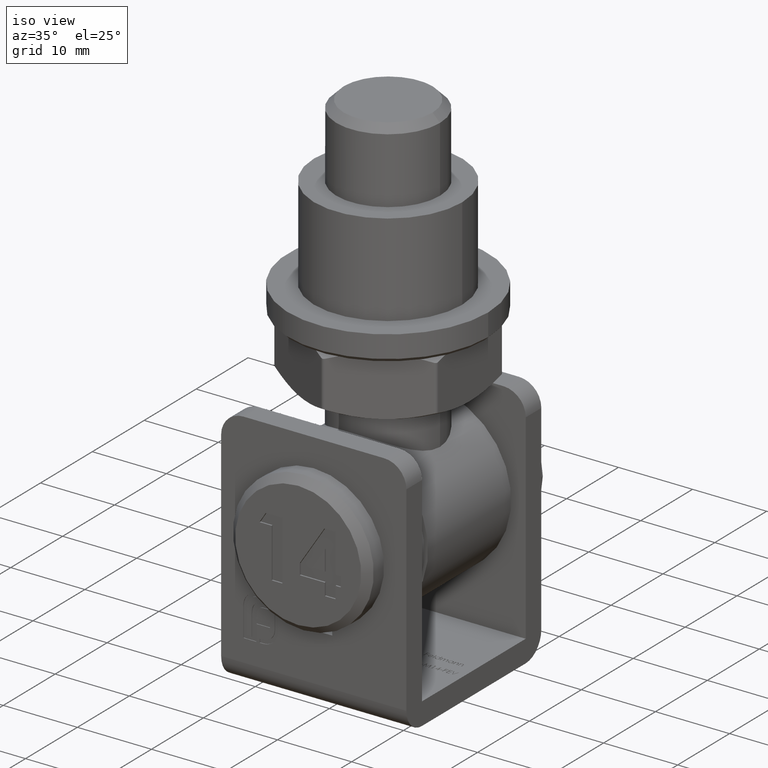
[diagram: clean part render]
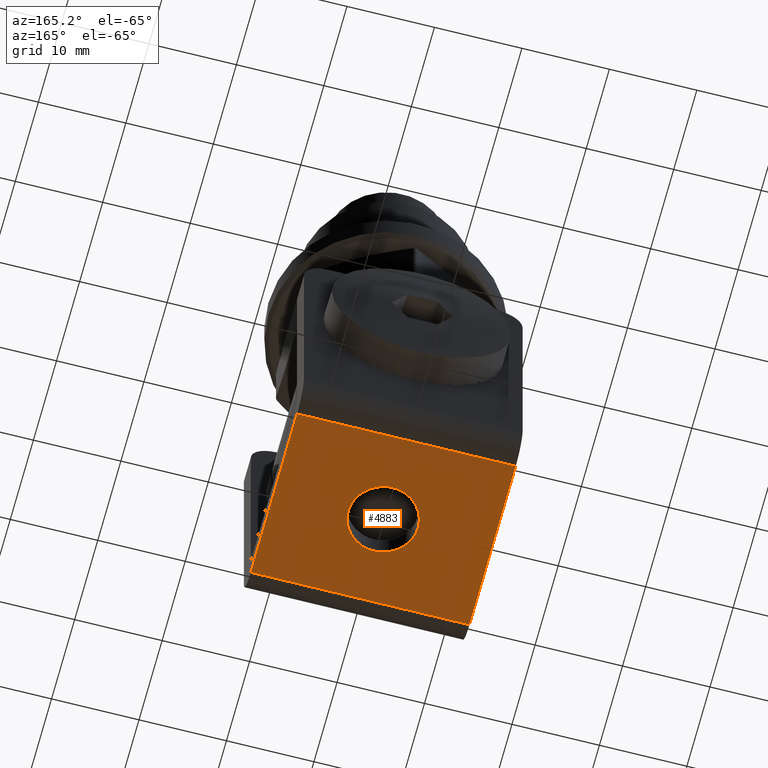
[diagram: tour spotlight — one face highlighted and labeled with its STEP entity id]
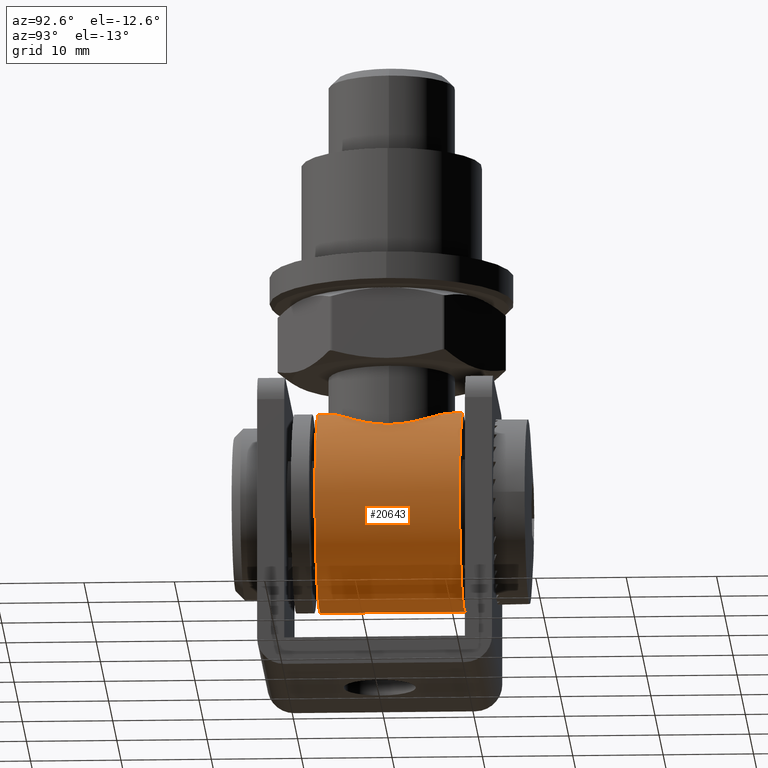
[diagram: tour spotlight — one face highlighted and labeled with its STEP entity id]
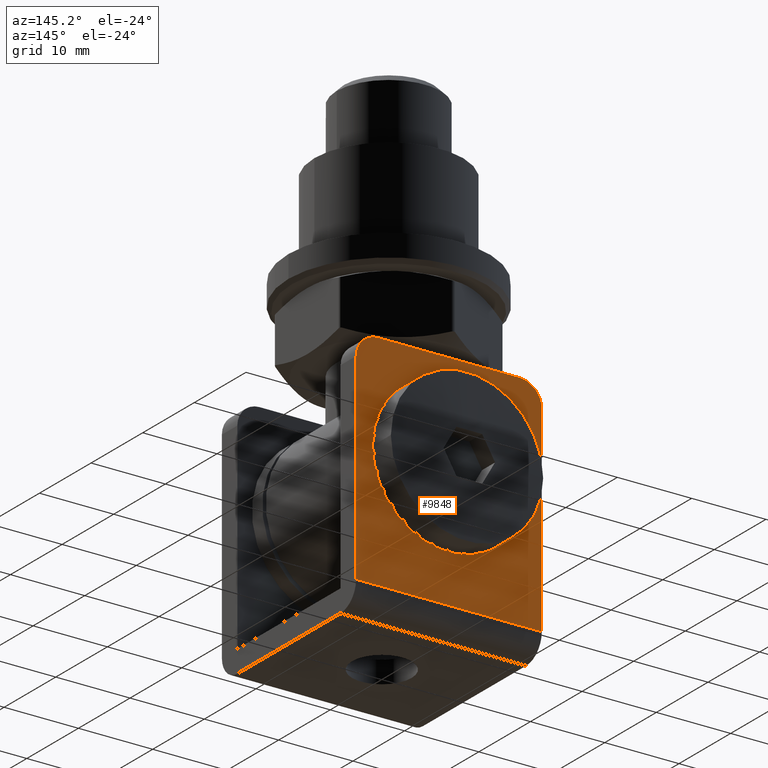
[diagram: tour spotlight — one face highlighted and labeled with its STEP entity id]
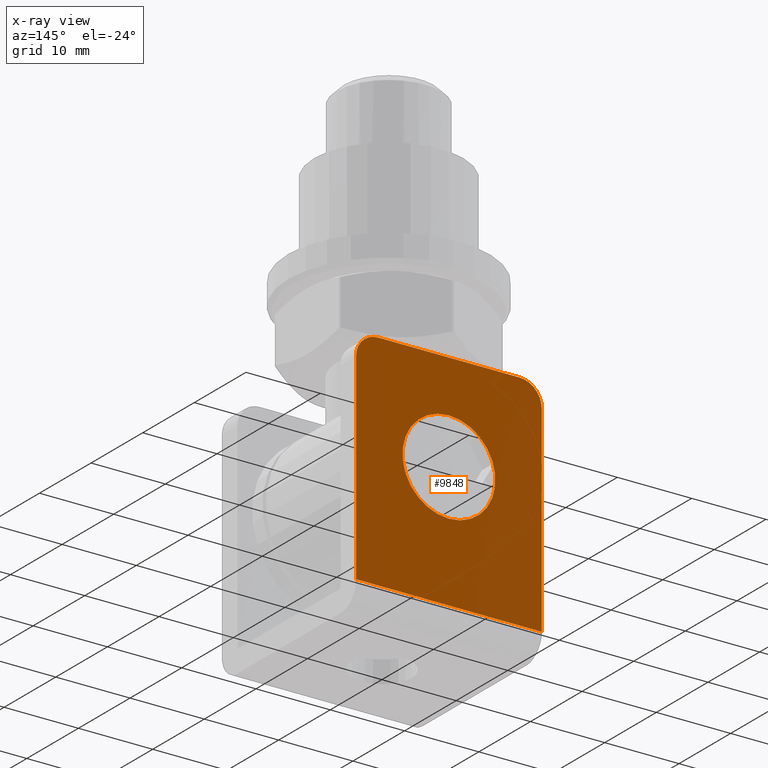
[diagram: x-ray of the same camera — body ghosted, this tour face saturated]
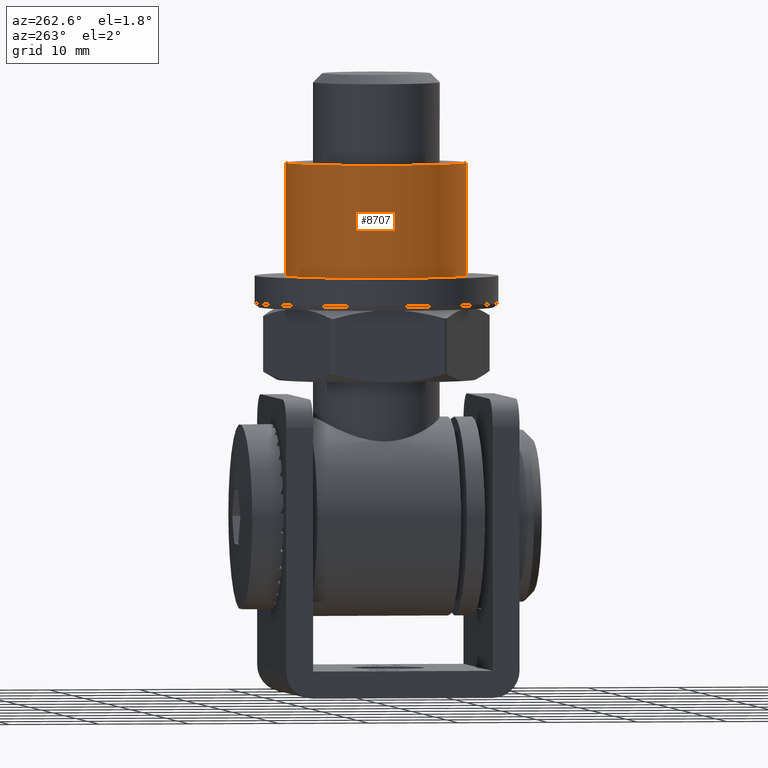
[diagram: tour spotlight — one face highlighted and labeled with its STEP entity id]
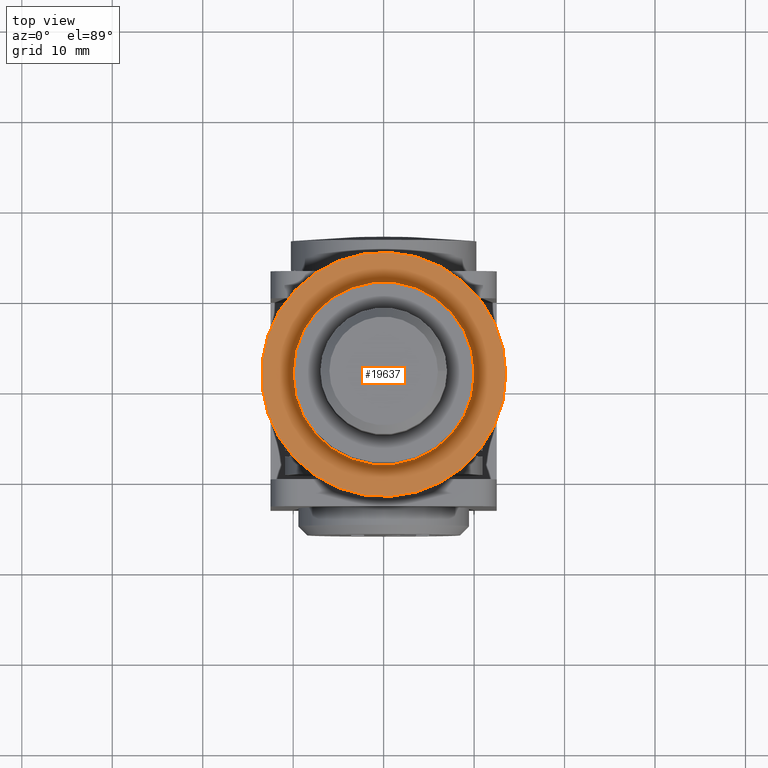
[diagram: tour spotlight — one face highlighted and labeled with its STEP entity id]
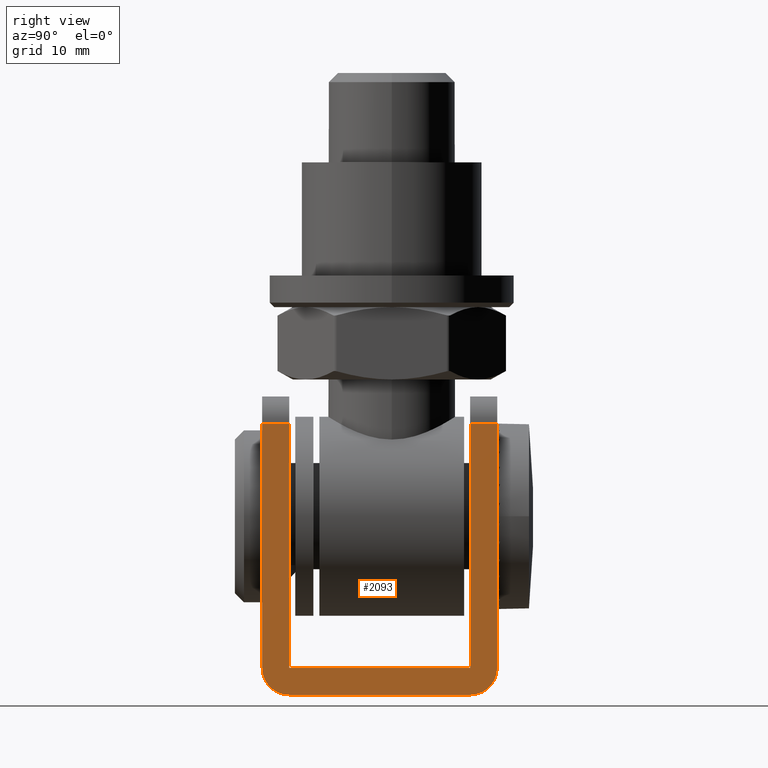
[diagram: tour spotlight — one face highlighted and labeled with its STEP entity id]
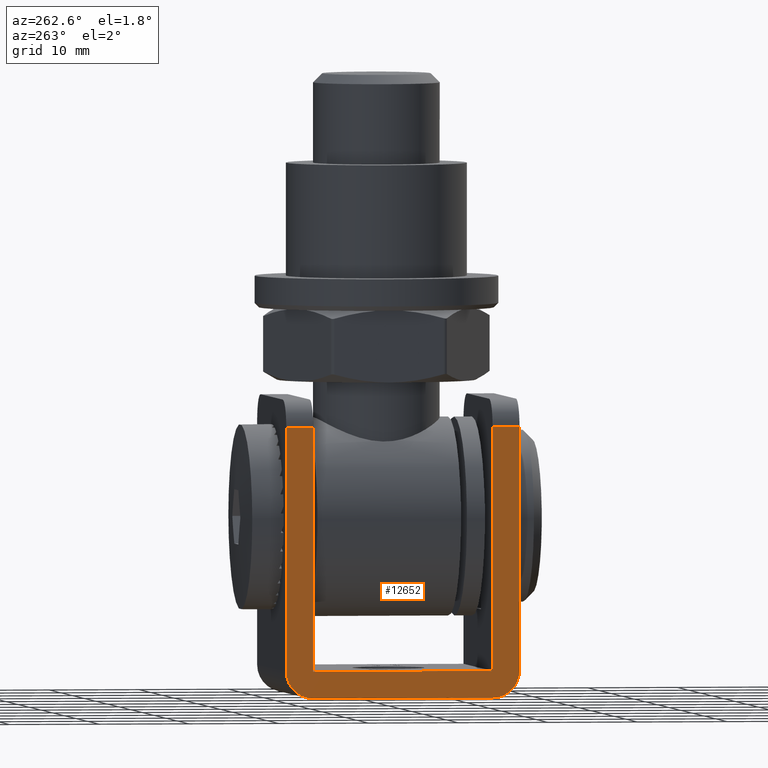
[diagram: tour spotlight — one face highlighted and labeled with its STEP entity id]
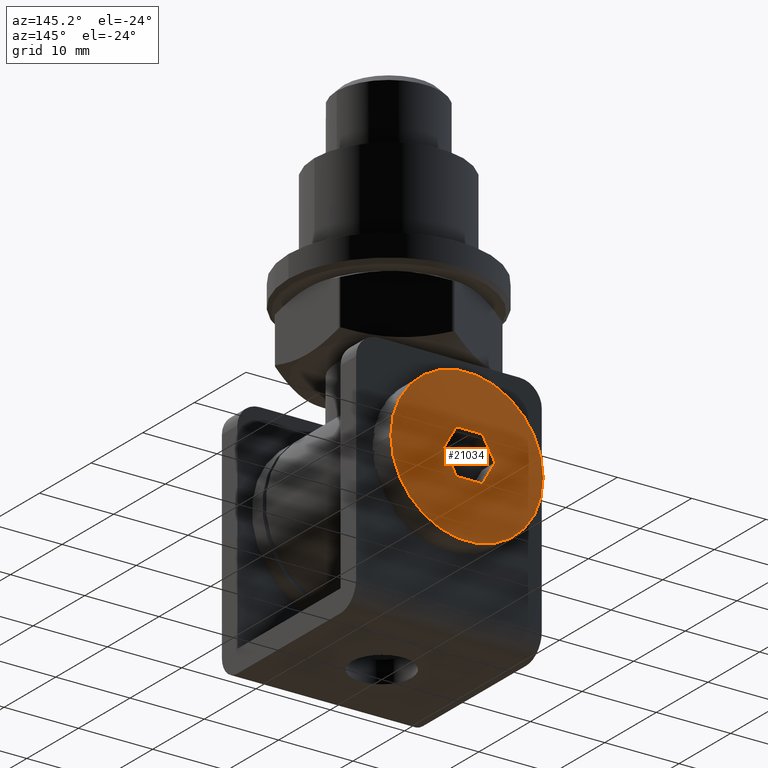
[diagram: tour spotlight — one face highlighted and labeled with its STEP entity id]
A machine part: a face-by-face anatomy tour. The part has 519 B-rep faces; the first image is the clean iso view, then the 8 largest visible faces are spotlighted one at a time (largest first), each with its STEP entity span.

Face 1 — auxiliary view, entity #4883. In plain terms, the highlighted planar face has unit normal (0, -0, 1).
Definition (entity closure, byte-faithful):
#288 = EDGE_LOOP ( 'NONE', ( #3611 ) ) ;
#375 = ORIENTED_EDGE ( 'NONE', *, *, #13584, .F. ) ;
#1078 = LINE ( 'NONE', #19435, #8978 ) ;
#1830 = VERTEX_POINT ( 'NONE', #6356 ) ;
#2604 = CARTESIAN_POINT ( 'NONE',  ( 12.50000000000000000, -9.999999999999998224, -18.00000000000000355 ) ) ;
#2656 = CARTESIAN_POINT ( 'NONE',  ( 12.50000000000000000, 13.00000000000000178, -17.99999999999999645 ) ) ;
#3243 = CARTESIAN_POINT ( 'NONE',  ( 12.50000000000000000, 10.00000000000000178, -17.99999999999999645 ) ) ;
#3281 = CARTESIAN_POINT ( 'NONE',  ( 12.50000000000000000, 10.00000000000000178, -17.99999999999999645 ) ) ;
#3611 = ORIENTED_EDGE ( 'NONE', *, *, #17074, .T. ) ;
#3696 = DIRECTION ( 'NONE',  ( -0.000000000000000000, 1.000000000000000000, 2.668805347656626678E-16 ) ) ;
#4621 = DIRECTION ( 'NONE',  ( 1.000000000000000000, -0.000000000000000000, -0.000000000000000000 ) ) ;
#4883 = ADVANCED_FACE ( 'NONE', ( #11138, #13965 ), #7509, .F. ) ;
#4956 = EDGE_CURVE ( 'NONE', #20128, #7896, #20351, .T. ) ;
#5382 = EDGE_CURVE ( 'NONE', #1830, #18996, #19844, .T. ) ;
#5867 = ORIENTED_EDGE ( 'NONE', *, *, #13273, .T. ) ;
#5968 = VECTOR ( 'NONE', #3696, 1000.000000000000000 ) ;
#6100 = ORIENTED_EDGE ( 'NONE', *, *, #4956, .T. ) ;
#6222 = DIRECTION ( 'NONE',  ( -0.000000000000000000, 1.000000000000000000, 2.668805347656626678E-16 ) ) ;
#6356 = CARTESIAN_POINT ( 'NONE',  ( -12.50000000000000000, 10.00000000000000178, -17.99999999999999645 ) ) ;
#7169 = AXIS2_PLACEMENT_3D ( 'NONE', #2656, #17305, #12455 ) ;
#7509 = PLANE ( 'NONE',  #7169 ) ;
#7618 = DIRECTION ( 'NONE',  ( 0.000000000000000000, 0.000000000000000000, 1.000000000000000000 ) ) ;
#7896 = VERTEX_POINT ( 'NONE', #15762 ) ;
#8088 = CARTESIAN_POINT ( 'NONE',  ( -12.50000000000000000, 13.00000000000000178, -17.99999999999999645 ) ) ;
#8105 = VERTEX_POINT ( 'NONE', #8542 ) ;
#8542 = CARTESIAN_POINT ( 'NONE',  ( 4.000000000000000000, 0.000000000000000000, -18.00000000000000355 ) ) ;
#8978 = VECTOR ( 'NONE', #6222, 1000.000000000000000 ) ;
#9118 = VECTOR ( 'NONE', #15816, 1000.000000000000000 ) ;
#9401 = CARTESIAN_POINT ( 'NONE',  ( 0.000000000000000000, 0.000000000000000000, -18.00000000000000355 ) ) ;
#10460 = CARTESIAN_POINT ( 'NONE',  ( 12.50000000000000000, -9.999999999999991118, -18.00000000000000355 ) ) ;
#11138 = FACE_BOUND ( 'NONE', #288, .T. ) ;
#11180 = DIRECTION ( 'NONE',  ( 1.000000000000000000, 0.000000000000000000, 0.000000000000000000 ) ) ;
#11487 = AXIS2_PLACEMENT_3D ( 'NONE', #9401, #7618, #11180 ) ;
#12077 = LINE ( 'NONE', #8088, #5968 ) ;
#12455 = DIRECTION ( 'NONE',  ( 0.000000000000000000, -1.000000000000000000, -2.668805347656626678E-16 ) ) ;
#13273 = EDGE_CURVE ( 'NONE', #7896, #1830, #12077, .T. ) ;
#13384 = CIRCLE ( 'NONE', #11487, 4.000000000000000000 ) ;
#13584 = EDGE_CURVE ( 'NONE', #20128, #18996, #1078, .T. ) ;
#13965 = FACE_OUTER_BOUND ( 'NONE', #17019, .T. ) ;
#15227 = VECTOR ( 'NONE', #4621, 1000.000000000000000 ) ;
#15762 = CARTESIAN_POINT ( 'NONE',  ( -12.50000000000000000, -9.999999999999991118, -18.00000000000000355 ) ) ;
#15816 = DIRECTION ( 'NONE',  ( -1.000000000000000000, 0.000000000000000000, 0.000000000000000000 ) ) ;
#17019 = EDGE_LOOP ( 'NONE', ( #5867, #19591, #375, #6100 ) ) ;
#17074 = EDGE_CURVE ( 'NONE', #8105, #8105, #13384, .T. ) ;
#17305 = DIRECTION ( 'NONE',  ( 0.000000000000000000, -2.668805347656626678E-16, 1.000000000000000000 ) ) ;
#18996 = VERTEX_POINT ( 'NONE', #3281 ) ;
#19435 = CARTESIAN_POINT ( 'NONE',  ( 12.50000000000000000, 13.00000000000000178, -17.99999999999999645 ) ) ;
#19591 = ORIENTED_EDGE ( 'NONE', *, *, #5382, .T. ) ;
#19844 = LINE ( 'NONE', #3243, #15227 ) ;
#20128 = VERTEX_POINT ( 'NONE', #10460 ) ;
#20351 = LINE ( 'NONE', #2604, #9118 ) ;

Face 2 — auxiliary view, entity #20643. In plain terms, the highlighted cylindrical surface (bore or boss wall) has radius 11 mm, axis along (-0, -1, -0).
Definition (entity closure, byte-faithful):
#188 = ORIENTED_EDGE ( 'NONE', *, *, #15343, .F. ) ;
#1016 = EDGE_LOOP ( 'NONE', ( #188 ) ) ;
#1064 = CARTESIAN_POINT ( 'NONE',  ( 6.999999999999998224, 4.065758146820641628E-16, 19.48528137423856776 ) ) ;
#1224 = CARTESIAN_POINT ( 'NONE',  ( 0.000000000000000000, 8.000000000000000000, 10.99999999999999645 ) ) ;
#1346 = EDGE_CURVE ( 'NONE', #2498, #2498, #20844, .T. ) ;
#1356 = CARTESIAN_POINT ( 'NONE',  ( 5.550900159852969473, -4.287873800940466218, 20.50124286603870161 ) ) ;
#1360 = DIRECTION ( 'NONE',  ( -0.000000000000000000, -1.000000000000000000, -0.000000000000000000 ) ) ;
#1428 = CARTESIAN_POINT ( 'NONE',  ( -6.755484151264660397, 1.892088027810663320, 19.68206981829461100 ) ) ;
#1514 = CARTESIAN_POINT ( 'NONE',  ( 3.536389806785835699, -6.045353300809028774, 21.41818165855507772 ) ) ;
#1586 = CARTESIAN_POINT ( 'NONE',  ( -0.4954557390833859709, -6.998301771233045088, 21.99891931288818725 ) ) ;
#1595 = B_SPLINE_CURVE_WITH_KNOTS ( 'NONE', 3,
 ( #1064, #14207, #6086, #7699, #20785, #19207, #9133, #7558, #18984, #5947, #9421, #20855, #18928, #11052, #10767, #12430, #9206, #14083, #15787, #4321, #10827, #12511, #2706, #7640, #14144, #4394, #16150, #6212, #12799, #14494, #19486, #6370, #14412, #13074, #1428, #9495, #21137, #17781, #4723, #9705, #19423, #21006, #3095, #17935, #11409, #3303, #1642, #11119, #11328, #4877, #14573, #9633, #4601, #9552, #8046, #13003, #1586, #7979, #17654, #21060, #20942, #11269, #3222, #19542, #7841, #1514, #7921, #12928, #4798, #3159, #16280, #8135, #1356, #3010, #16207, #19262, #9766, #12857, #14627, #6485 ),
 .UNSPECIFIED., .T., .F.,
 ( 4, 2, 2, 2, 2, 2, 2, 2, 2, 2, 2, 2, 2, 2, 2, 2, 2, 2, 2, 2, 2, 2, 2, 2, 2, 2, 2, 2, 2, 2, 2, 2, 2, 2, 2, 2, 2, 2, 2, 4 ),
 ( 0.000000000000000000, 0.001406121461338900652, 0.002812242922677801304, 0.004218364384016701739, 0.005624485845355602608, 0.007030607306694503476, 0.008436728768033401743, 0.009842850229372300877, 0.01124897169071120175, 0.01195203242138065218, 0.01265509315205010261, 0.01406121461338900001, 0.01546733607472789741, 0.01687345753606679655, 0.01757651826673624351, 0.01827957899740569395, 0.01968570045874458788, 0.02109182192008348875, 0.02179488265075293571, 0.02249794338142238267, 0.02390406484276127660, 0.02460712557343073398, 0.02531018630410017747, 0.02671630776543907487, 0.02812242922677797574, 0.02952855068811687661, 0.03093467214945577748, 0.03234079361079467835, 0.03374691507213357922, 0.03444997580280302618, 0.03515303653347248009, 0.03655915799481138095, 0.03726221872548082792, 0.03796527945615028182, 0.03866834018681972879, 0.03937140091748917575, 0.04077752237882807662, 0.04218364384016697055, 0.04358976530150587142, 0.04499588676284475841 ),
 .UNSPECIFIED. ) ;
#1642 = CARTESIAN_POINT ( 'NONE',  ( -6.069981008097511399, -3.514922518669727047, 20.17827257637213023 ) ) ;
#1726 = VERTEX_POINT ( 'NONE', #16713 ) ;
#2313 = CYLINDRICAL_SURFACE ( 'NONE', #20699, 11.00000000000000000 ) ;
#2498 = VERTEX_POINT ( 'NONE', #21064 ) ;
#2706 = CARTESIAN_POINT ( 'NONE',  ( -2.282114036081879238, 6.633500981613516423, 21.76955552960537332 ) ) ;
#3010 = CARTESIAN_POINT ( 'NONE',  ( 6.049566573217949994, -3.549802613336599411, 20.19178181096085822 ) ) ;
#3095 = CARTESIAN_POINT ( 'NONE',  ( -6.761770310398036443, -1.825352798148861311, 19.67673426928451974 ) ) ;
#3159 = CARTESIAN_POINT ( 'NONE',  ( 4.628223177077715356, -5.256399836646282075, 20.98074476675502353 ) ) ;
#3222 = CARTESIAN_POINT ( 'NONE',  ( 2.287885788001218668, -6.631591933928312699, 21.76837024179720714 ) ) ;
#3303 = CARTESIAN_POINT ( 'NONE',  ( -6.286168614735403892, -3.113081343796759271, 20.02944632295685068 ) ) ;
#4321 = CARTESIAN_POINT ( 'NONE',  ( -0.9121041043007858118, 6.944318271780645979, 21.96463613817975258 ) ) ;
#4394 = CARTESIAN_POINT ( 'NONE',  ( -4.282465799634800341, 5.555751067334872673, 21.14015400498643515 ) ) ;
#4475 = AXIS2_PLACEMENT_3D ( 'NONE', #5218, #19911, #6917 ) ;
#4601 = CARTESIAN_POINT ( 'NONE',  ( -3.185077092595522075, -6.250630345064753790, 21.53798673590861412 ) ) ;
#4639 = FACE_OUTER_BOUND ( 'NONE', #7849, .T. ) ;
#4723 = CARTESIAN_POINT ( 'NONE',  ( -6.998773492151447506, 0.2713356135412863801, 19.48629317249509185 ) ) ;
#4798 = CARTESIAN_POINT ( 'NONE',  ( 4.282642850560577585, -5.541584541814441600, 21.13383866511055587 ) ) ;
#4877 = CARTESIAN_POINT ( 'NONE',  ( -4.664621244005098255, -5.238487383690787702, 20.96824195947080938 ) ) ;
#4944 = ORIENTED_EDGE ( 'NONE', *, *, #1346, .T. ) ;
#5218 = CARTESIAN_POINT ( 'NONE',  ( 0.000000000000000000, 8.000000000000000000, 10.99999999999999645 ) ) ;
#5486 = AXIS2_PLACEMENT_3D ( 'NONE', #6713, #8354, #9982 ) ;
#5947 = CARTESIAN_POINT ( 'NONE',  ( 4.656182010309033892, 5.245612607270627059, 20.97208383515980401 ) ) ;
#6086 = CARTESIAN_POINT ( 'NONE',  ( 6.951796042625402627, 0.9422125498319408043, 19.52564099845543311 ) ) ;
#6212 = CARTESIAN_POINT ( 'NONE',  ( -5.098489564267140395, 4.801524073753618893, 20.74865869084077374 ) ) ;
#6295 = DIRECTION ( 'NONE',  ( 0.000000000000000000, 0.000000000000000000, -1.000000000000000000 ) ) ;
#6370 = CARTESIAN_POINT ( 'NONE',  ( -6.043028632828979063, 3.560950208604664713, 20.19610775238489708 ) ) ;
#6485 = CARTESIAN_POINT ( 'NONE',  ( 6.999999999999998224, 4.065758146820641628E-16, 19.48528137423856776 ) ) ;
#6713 = CARTESIAN_POINT ( 'NONE',  ( 0.000000000000000000, -8.000000000000000000, 10.99999999999999645 ) ) ;
#6917 = DIRECTION ( 'NONE',  ( 0.000000000000000000, 0.000000000000000000, 1.000000000000000000 ) ) ;
#7558 = CARTESIAN_POINT ( 'NONE',  ( 5.561427251610810529, 4.274528395041521378, 20.49511477362392142 ) ) ;
#7640 = CARTESIAN_POINT ( 'NONE',  ( -3.130143943021725050, 6.278023466244274431, 21.55431521582049115 ) ) ;
#7699 = CARTESIAN_POINT ( 'NONE',  ( 6.766645627722152057, 1.851415581697340107, 19.67332286967544164 ) ) ;
#7841 = CARTESIAN_POINT ( 'NONE',  ( 3.134070167508511862, -6.263381960432765183, 21.54619201993427424 ) ) ;
#7849 = EDGE_LOOP ( 'NONE', ( #4944 ) ) ;
#7921 = CARTESIAN_POINT ( 'NONE',  ( 3.729983330539599962, -5.927722313896970796, 21.35022142211842677 ) ) ;
#7979 = CARTESIAN_POINT ( 'NONE',  ( 0.2108218240633466800, -7.000784254364443626, 22.00049906907420194 ) ) ;
#8046 = CARTESIAN_POINT ( 'NONE',  ( -1.890795943580095839, -6.756041647878364920, 21.84613027205466906 ) ) ;
#8135 = CARTESIAN_POINT ( 'NONE',  ( 5.269261832585394600, -4.629806052528896210, 20.66231251811376524 ) ) ;
#8354 = DIRECTION ( 'NONE',  ( 0.000000000000000000, 1.000000000000000000, 0.000000000000000000 ) ) ;
#8416 = EDGE_LOOP ( 'NONE', ( #10789 ) ) ;
#9133 = CARTESIAN_POINT ( 'NONE',  ( 6.061367339711258850, 3.529998873662329562, 20.18403525757236849 ) ) ;
#9206 = CARTESIAN_POINT ( 'NONE',  ( 0.5066845053529267506, 6.997701955183010192, 21.99853761724270029 ) ) ;
#9421 = CARTESIAN_POINT ( 'NONE',  ( 4.308349454453002991, 5.535253991124005069, 21.12895080335001197 ) ) ;
#9495 = CARTESIAN_POINT ( 'NONE',  ( -6.898746045132515547, 1.208901902766136516, 19.56802361205319229 ) ) ;
#9552 = CARTESIAN_POINT ( 'NONE',  ( -2.332586526808398286, -6.616202527989375248, 21.75885312786238401 ) ) ;
#9633 = CARTESIAN_POINT ( 'NONE',  ( -3.582249218521094569, -6.030552325017865201, 21.40788186223259615 ) ) ;
#9705 = CARTESIAN_POINT ( 'NONE',  ( -7.002209086938795402, -0.4414538948317032752, 19.48345900672043385 ) ) ;
#9766 = CARTESIAN_POINT ( 'NONE',  ( 6.761050445812154308, -1.873348193074330537, 19.67772613413638894 ) ) ;
#9982 = DIRECTION ( 'NONE',  ( 0.000000000000000000, 0.000000000000000000, 1.000000000000000000 ) ) ;
#10267 = CARTESIAN_POINT ( 'NONE',  ( 0.000000000000000000, 8.000000000000000000, 21.99999999999999645 ) ) ;
#10481 = FACE_OUTER_BOUND ( 'NONE', #8416, .T. ) ;
#10767 = CARTESIAN_POINT ( 'NONE',  ( 1.881916225259458120, 6.758313683327014765, 21.84755109362190240 ) ) ;
#10789 = ORIENTED_EDGE ( 'NONE', *, *, #12830, .F. ) ;
#10827 = CARTESIAN_POINT ( 'NONE',  ( -1.143743791894039186, 6.909873317830363071, 21.94280962730335460 ) ) ;
#11052 = CARTESIAN_POINT ( 'NONE',  ( 2.333150447338956379, 6.615519443612392969, 21.75846663963361038 ) ) ;
#11119 = CARTESIAN_POINT ( 'NONE',  ( -5.574218555609231629, -4.257632821794024913, 20.48754153715023207 ) ) ;
#11269 = CARTESIAN_POINT ( 'NONE',  ( 1.844669891425609443, -6.769109616839070753, 21.85428864161346496 ) ) ;
#11328 = CARTESIAN_POINT ( 'NONE',  ( -5.293971829798728379, -4.601554485650336090, 20.64875128593724796 ) ) ;
#11409 = CARTESIAN_POINT ( 'NONE',  ( -6.548834682221756687, -2.482853626661153168, 19.83880469820100956 ) ) ;
#12430 = CARTESIAN_POINT ( 'NONE',  ( 0.9710364159981565990, 6.947913413388620008, 21.96667961082286880 ) ) ;
#12511 = CARTESIAN_POINT ( 'NONE',  ( -1.830497924783995423, 6.772538214525043898, 21.85643619936850257 ) ) ;
#12799 = CARTESIAN_POINT ( 'NONE',  ( -5.248199978073445848, 4.637477162548048426, 20.66866425987132772 ) ) ;
#12830 = EDGE_CURVE ( 'NONE', #20360, #20360, #13884, .T. ) ;
#12857 = CARTESIAN_POINT ( 'NONE',  ( 6.950896044413342523, -0.9519877956520989004, 19.52641649051050976 ) ) ;
#12928 = CARTESIAN_POINT ( 'NONE',  ( 4.103111371060875534, -5.675838665205891864, 21.20805251797095892 ) ) ;
#13003 = CARTESIAN_POINT ( 'NONE',  ( -0.9742201482635944876, -6.947668900490524102, 21.96651933301341586 ) ) ;
#13074 = CARTESIAN_POINT ( 'NONE',  ( -6.613203327089321348, 2.338826927430850411, 19.79282117696095966 ) ) ;
#13884 = CIRCLE ( 'NONE', #4475, 11.00000000000000000 ) ;
#14083 = CARTESIAN_POINT ( 'NONE',  ( -0.2041270329992097010, 7.001033681877515846, 22.00065779309881719 ) ) ;
#14144 = CARTESIAN_POINT ( 'NONE',  ( -3.529389465703206774, 6.062119534174291502, 21.42620000619917420 ) ) ;
#14207 = CARTESIAN_POINT ( 'NONE',  ( 7.000000000000000888, 0.4770684043951858300, 19.48528137423857132 ) ) ;
#14412 = CARTESIAN_POINT ( 'NONE',  ( -6.257231578408041450, 3.170429405628543584, 20.04959753080830609 ) ) ;
#14494 = CARTESIAN_POINT ( 'NONE',  ( -5.532920210244604675, 4.293785205395300508, 20.50859955656090250 ) ) ;
#14573 = CARTESIAN_POINT ( 'NONE',  ( -4.320673075874997160, -5.525563770311793910, 21.12365045293416443 ) ) ;
#14627 = CARTESIAN_POINT ( 'NONE',  ( 6.999999999999995559, -0.4770684043951816666, 19.48528137423856421 ) ) ;
#15343 = EDGE_CURVE ( 'NONE', #1726, #1726, #1595, .T. ) ;
#15787 = CARTESIAN_POINT ( 'NONE',  ( -0.4431899175618267406, 6.989926527070254636, 21.99357822716204680 ) ) ;
#16150 = CARTESIAN_POINT ( 'NONE',  ( -4.627019222960474742, 5.271395468133677653, 20.98571287090409498 ) ) ;
#16207 = CARTESIAN_POINT ( 'NONE',  ( 6.268219601630953264, -3.149036765921577885, 20.04197856790874965 ) ) ;
#16280 = CARTESIAN_POINT ( 'NONE',  ( 4.794972940942817452, -5.104732175317311160, 20.90149409736409325 ) ) ;
#16713 = CARTESIAN_POINT ( 'NONE',  ( 7.000000000000000000, 0.000000000000000000, 19.48528137423857132 ) ) ;
#17654 = CARTESIAN_POINT ( 'NONE',  ( 0.4456997068847697863, -6.989762943689848740, 21.99347413284338870 ) ) ;
#17781 = CARTESIAN_POINT ( 'NONE',  ( -6.985340103236657328, 0.5102739130924452970, 19.49741532136373223 ) ) ;
#17935 = CARTESIAN_POINT ( 'NONE',  ( -6.626591559830562694, -2.267539386090679621, 19.78040657427313675 ) ) ;
#18432 = FACE_BOUND ( 'NONE', #1016, .T. ) ;
#18928 = CARTESIAN_POINT ( 'NONE',  ( 3.173165213850632327, 6.256173834248847321, 21.54131006903959999 ) ) ;
#18984 = CARTESIAN_POINT ( 'NONE',  ( 5.280676336514986247, 4.616377364086767798, 20.65592793870954580 ) ) ;
#19207 = CARTESIAN_POINT ( 'NONE',  ( 6.275474501104536529, 3.134339595569870074, 20.03690371724870545 ) ) ;
#19262 = CARTESIAN_POINT ( 'NONE',  ( 6.623117255462159569, -2.311131183597260108, 19.78534411489902567 ) ) ;
#19423 = CARTESIAN_POINT ( 'NONE',  ( -6.956592858069567953, -0.9083107374280312563, 19.52170871556391063 ) ) ;
#19486 = CARTESIAN_POINT ( 'NONE',  ( -5.667795505413761425, 4.114089749889964231, 20.42855992829645473 ) ) ;
#19542 = CARTESIAN_POINT ( 'NONE',  ( 2.925215329523879859, -6.363664315093054746, 21.60618546117118655 ) ) ;
#19911 = DIRECTION ( 'NONE',  ( 0.000000000000000000, 1.000000000000000000, 0.000000000000000000 ) ) ;
#20360 = VERTEX_POINT ( 'NONE', #10267 ) ;
#20643 = ADVANCED_FACE ( 'NONE', ( #18432, #10481, #4639 ), #2313, .T. ) ;
#20699 = AXIS2_PLACEMENT_3D ( 'NONE', #1224, #1360, #6295 ) ;
#20785 = CARTESIAN_POINT ( 'NONE',  ( 6.627441315752846229, 2.298409563289915081, 19.78204023078287932 ) ) ;
#20844 = CIRCLE ( 'NONE', #5486, 11.00000000000000000 ) ;
#20855 = CARTESIAN_POINT ( 'NONE',  ( 3.567178756787960481, 6.039548616002725190, 21.41310496996409896 ) ) ;
#20942 = CARTESIAN_POINT ( 'NONE',  ( 1.149235014603942284, -6.909064472451186489, 21.94229665619407399 ) ) ;
#21006 = CARTESIAN_POINT ( 'NONE',  ( -6.819394010496153236, -1.597081236749446909, 19.63129719312658494 ) ) ;
#21060 = CARTESIAN_POINT ( 'NONE',  ( 0.9143619395329916077, -6.944017315735210083, 21.96444544798082532 ) ) ;
#21064 = CARTESIAN_POINT ( 'NONE',  ( 0.000000000000000000, -8.000000000000000000, 21.99999999999999645 ) ) ;
#21137 = CARTESIAN_POINT ( 'NONE',  ( -6.935311987898135300, 0.9781633068078746662, 19.53829556364440379 ) ) ;

Face 3 — auxiliary view, entity #9848. An x-ray twin of the same camera follows (body ghosted, this face saturated) — the face is partly hidden behind the body. In plain terms, the highlighted planar face has unit normal (0, -1, 0).
Definition (entity closure, byte-faithful):
#342 = VERTEX_POINT ( 'NONE', #18596 ) ;
#824 = EDGE_CURVE ( 'NONE', #342, #12414, #12169, .T. ) ;
#844 = CARTESIAN_POINT ( 'NONE',  ( -12.50000000000000000, 13.00000000000000178, 14.99999999999999645 ) ) ;
#967 = AXIS2_PLACEMENT_3D ( 'NONE', #1380, #21175, #9518 ) ;
#1263 = LINE ( 'NONE', #5470, #16351 ) ;
#1295 = AXIS2_PLACEMENT_3D ( 'NONE', #7076, #20275, #12070 ) ;
#1380 = CARTESIAN_POINT ( 'NONE',  ( 9.500000000000001776, 13.00000000000000178, 11.99999999999999645 ) ) ;
#1401 = EDGE_CURVE ( 'NONE', #9901, #9901, #19291, .T. ) ;
#2011 = CARTESIAN_POINT ( 'NONE',  ( 12.50000000000000000, 13.00000000000000178, 11.99999999999999645 ) ) ;
#2303 = DIRECTION ( 'NONE',  ( 0.000000000000000000, 1.000000000000000000, 0.000000000000000000 ) ) ;
#2685 = CARTESIAN_POINT ( 'NONE',  ( -12.50000000000000000, 13.00000000000000178, -14.99999999999999645 ) ) ;
#3119 = EDGE_CURVE ( 'NONE', #16876, #21025, #1263, .T. ) ;
#3202 = EDGE_CURVE ( 'NONE', #21025, #14050, #6129, .T. ) ;
#3248 = CARTESIAN_POINT ( 'NONE',  ( -12.50000000000000000, 13.00000000000000178, 11.99999999999999645 ) ) ;
#4035 = ORIENTED_EDGE ( 'NONE', *, *, #20322, .T. ) ;
#4349 = EDGE_CURVE ( 'NONE', #14050, #12414, #21138, .T. ) ;
#4508 = CARTESIAN_POINT ( 'NONE',  ( 12.50000000000000000, 13.00000000000000178, 14.99999999999999645 ) ) ;
#4528 = EDGE_LOOP ( 'NONE', ( #18723 ) ) ;
#5470 = CARTESIAN_POINT ( 'NONE',  ( 12.50000000000000000, 13.00000000000000178, -14.99999999999999645 ) ) ;
#6129 = LINE ( 'NONE', #844, #9423 ) ;
#7076 = CARTESIAN_POINT ( 'NONE',  ( -9.500000000000001776, 13.00000000000000178, 11.99999999999999645 ) ) ;
#7478 = PLANE ( 'NONE',  #20028 ) ;
#7501 = ORIENTED_EDGE ( 'NONE', *, *, #11798, .F. ) ;
#7813 = VECTOR ( 'NONE', #8077, 1000.000000000000000 ) ;
#8077 = DIRECTION ( 'NONE',  ( -1.000000000000000000, -0.000000000000000000, -0.000000000000000000 ) ) ;
#8635 = CARTESIAN_POINT ( 'NONE',  ( 0.000000000000000000, 13.00000000000000178, 1.749999999999996447 ) ) ;
#8859 = DIRECTION ( 'NONE',  ( -0.000000000000000000, -0.000000000000000000, 1.000000000000000000 ) ) ;
#9368 = ORIENTED_EDGE ( 'NONE', *, *, #3119, .T. ) ;
#9406 = DIRECTION ( 'NONE',  ( 0.000000000000000000, -1.000000000000000000, 0.000000000000000000 ) ) ;
#9423 = VECTOR ( 'NONE', #8859, 1000.000000000000000 ) ;
#9518 = DIRECTION ( 'NONE',  ( 0.000000000000000000, 0.000000000000000000, -1.000000000000000000 ) ) ;
#9759 = CARTESIAN_POINT ( 'NONE',  ( 12.50000000000000000, 13.00000000000000178, 14.99999999999999645 ) ) ;
#9848 = ADVANCED_FACE ( 'NONE', ( #11978, #16853 ), #7478, .F. ) ;
#9901 = VERTEX_POINT ( 'NONE', #17872 ) ;
#10947 = ORIENTED_EDGE ( 'NONE', *, *, #824, .F. ) ;
#11433 = CARTESIAN_POINT ( 'NONE',  ( 12.50000000000000000, 13.00000000000000178, 14.99999999999999645 ) ) ;
#11480 = DIRECTION ( 'NONE',  ( -0.000000000000000000, -0.000000000000000000, 1.000000000000000000 ) ) ;
#11798 = EDGE_CURVE ( 'NONE', #16876, #19505, #21111, .T. ) ;
#11954 = ORIENTED_EDGE ( 'NONE', *, *, #3202, .T. ) ;
#11978 = FACE_BOUND ( 'NONE', #4528, .T. ) ;
#12070 = DIRECTION ( 'NONE',  ( 0.000000000000000000, 0.000000000000000000, -1.000000000000000000 ) ) ;
#12081 = DIRECTION ( 'NONE',  ( -1.000000000000000000, 0.000000000000000000, 0.000000000000000000 ) ) ;
#12169 = LINE ( 'NONE', #11433, #7813 ) ;
#12414 = VERTEX_POINT ( 'NONE', #18134 ) ;
#13142 = ORIENTED_EDGE ( 'NONE', *, *, #4349, .T. ) ;
#14050 = VERTEX_POINT ( 'NONE', #3248 ) ;
#14336 = DIRECTION ( 'NONE',  ( 0.000000000000000000, -0.000000000000000000, -1.000000000000000000 ) ) ;
#15476 = CARTESIAN_POINT ( 'NONE',  ( 12.50000000000000000, 13.00000000000000178, -14.99999999999999645 ) ) ;
#16259 = VECTOR ( 'NONE', #11480, 1000.000000000000000 ) ;
#16351 = VECTOR ( 'NONE', #12081, 1000.000000000000000 ) ;
#16853 = FACE_OUTER_BOUND ( 'NONE', #18534, .T. ) ;
#16876 = VERTEX_POINT ( 'NONE', #15476 ) ;
#17620 = CIRCLE ( 'NONE', #967, 2.999999999999999112 ) ;
#17872 = CARTESIAN_POINT ( 'NONE',  ( 0.000000000000000000, 13.00000000000000178, 7.999999999999996447 ) ) ;
#18134 = CARTESIAN_POINT ( 'NONE',  ( -9.500000000000001776, 13.00000000000000178, 14.99999999999999645 ) ) ;
#18534 = EDGE_LOOP ( 'NONE', ( #11954, #13142, #10947, #4035, #7501, #9368 ) ) ;
#18596 = CARTESIAN_POINT ( 'NONE',  ( 9.500000000000001776, 13.00000000000000178, 14.99999999999999645 ) ) ;
#18723 = ORIENTED_EDGE ( 'NONE', *, *, #1401, .F. ) ;
#19291 = CIRCLE ( 'NONE', #20796, 6.250000000000000000 ) ;
#19505 = VERTEX_POINT ( 'NONE', #2011 ) ;
#19995 = DIRECTION ( 'NONE',  ( 0.000000000000000000, 0.000000000000000000, 1.000000000000000000 ) ) ;
#20028 = AXIS2_PLACEMENT_3D ( 'NONE', #4508, #9406, #14336 ) ;
#20275 = DIRECTION ( 'NONE',  ( -0.000000000000000000, 1.000000000000000000, -0.000000000000000000 ) ) ;
#20322 = EDGE_CURVE ( 'NONE', #342, #19505, #17620, .T. ) ;
#20796 = AXIS2_PLACEMENT_3D ( 'NONE', #8635, #2303, #19995 ) ;
#21025 = VERTEX_POINT ( 'NONE', #2685 ) ;
#21111 = LINE ( 'NONE', #9759, #16259 ) ;
#21138 = CIRCLE ( 'NONE', #1295, 2.999999999999999112 ) ;
#21175 = DIRECTION ( 'NONE',  ( -0.000000000000000000, 1.000000000000000000, -0.000000000000000000 ) ) ;

Face 4 — auxiliary view, entity #8707. In plain terms, the highlighted cylindrical surface (bore or boss wall) has radius 10 mm, axis along (0, 0, 1).
Definition (entity closure, byte-faithful):
#1954 = EDGE_LOOP ( 'NONE', ( #12397 ) ) ;
#3205 = AXIS2_PLACEMENT_3D ( 'NONE', #9284, #20586, #10783 ) ;
#4904 = EDGE_CURVE ( 'NONE', #10419, #10419, #13213, .T. ) ;
#6577 = CARTESIAN_POINT ( 'NONE',  ( 0.000000000000000000, 0.000000000000000000, 8.000000000000007105 ) ) ;
#7636 = FACE_OUTER_BOUND ( 'NONE', #19282, .T. ) ;
#8707 = ADVANCED_FACE ( 'NONE', ( #10706, #7636 ), #12232, .T. ) ;
#8860 = DIRECTION ( 'NONE',  ( -0.000000000000000000, -0.000000000000000000, 1.000000000000000000 ) ) ;
#9284 = CARTESIAN_POINT ( 'NONE',  ( 0.000000000000000000, 0.000000000000000000, -4.500000000000003553 ) ) ;
#9289 = ORIENTED_EDGE ( 'NONE', *, *, #4904, .T. ) ;
#9711 = CARTESIAN_POINT ( 'NONE',  ( 9.999999999999998224, 0.000000000000000000, -4.500000000000003553 ) ) ;
#10419 = VERTEX_POINT ( 'NONE', #9711 ) ;
#10501 = CARTESIAN_POINT ( 'NONE',  ( 0.000000000000000000, 0.000000000000000000, 8.000000000000007105 ) ) ;
#10706 = FACE_OUTER_BOUND ( 'NONE', #1954, .T. ) ;
#10783 = DIRECTION ( 'NONE',  ( 1.000000000000000000, 0.000000000000000000, 0.000000000000000000 ) ) ;
#12232 = CYLINDRICAL_SURFACE ( 'NONE', #20904, 10.00000000000000000 ) ;
#12397 = ORIENTED_EDGE ( 'NONE', *, *, #18743, .F. ) ;
#13213 = CIRCLE ( 'NONE', #3205, 9.999999999999998224 ) ;
#13220 = VERTEX_POINT ( 'NONE', #16501 ) ;
#13438 = DIRECTION ( 'NONE',  ( 1.000000000000000000, 0.000000000000000000, 0.000000000000000000 ) ) ;
#13742 = DIRECTION ( 'NONE',  ( 1.000000000000000000, 0.000000000000000000, 0.000000000000000000 ) ) ;
#15748 = AXIS2_PLACEMENT_3D ( 'NONE', #10501, #8860, #13742 ) ;
#16501 = CARTESIAN_POINT ( 'NONE',  ( 10.00000000000000178, 0.000000000000000000, 8.000000000000007105 ) ) ;
#18235 = DIRECTION ( 'NONE',  ( -0.000000000000000000, -0.000000000000000000, 1.000000000000000000 ) ) ;
#18743 = EDGE_CURVE ( 'NONE', #13220, #13220, #19299, .T. ) ;
#19282 = EDGE_LOOP ( 'NONE', ( #9289 ) ) ;
#19299 = CIRCLE ( 'NONE', #15748, 10.00000000000000178 ) ;
#20586 = DIRECTION ( 'NONE',  ( -0.000000000000000000, -0.000000000000000000, 1.000000000000000000 ) ) ;
#20904 = AXIS2_PLACEMENT_3D ( 'NONE', #6577, #18235, #13438 ) ;

Face 5 — top view, entity #19637. In plain terms, the highlighted planar face has unit normal (0, 0, -1).
Definition (entity closure, byte-faithful):
#523 = CARTESIAN_POINT ( 'NONE',  ( 0.000000000000000000, 0.000000000000000000, -4.500000000000003553 ) ) ;
#686 = VERTEX_POINT ( 'NONE', #20051 ) ;
#1201 = DIRECTION ( 'NONE',  ( -1.000000000000000000, 0.000000000000000000, -0.000000000000000000 ) ) ;
#1584 = FACE_BOUND ( 'NONE', #10160, .T. ) ;
#3205 = AXIS2_PLACEMENT_3D ( 'NONE', #9284, #20586, #10783 ) ;
#4770 = ORIENTED_EDGE ( 'NONE', *, *, #12491, .T. ) ;
#4904 = EDGE_CURVE ( 'NONE', #10419, #10419, #13213, .T. ) ;
#5222 = CIRCLE ( 'NONE', #15822, 13.49999999999999822 ) ;
#5478 = DIRECTION ( 'NONE',  ( -0.000000000000000000, -0.000000000000000000, 1.000000000000000000 ) ) ;
#6224 = EDGE_LOOP ( 'NONE', ( #4770 ) ) ;
#9284 = CARTESIAN_POINT ( 'NONE',  ( 0.000000000000000000, 0.000000000000000000, -4.500000000000003553 ) ) ;
#9711 = CARTESIAN_POINT ( 'NONE',  ( 9.999999999999998224, 0.000000000000000000, -4.500000000000003553 ) ) ;
#10129 = AXIS2_PLACEMENT_3D ( 'NONE', #19126, #12498, #1201 ) ;
#10160 = EDGE_LOOP ( 'NONE', ( #15776 ) ) ;
#10419 = VERTEX_POINT ( 'NONE', #9711 ) ;
#10783 = DIRECTION ( 'NONE',  ( 1.000000000000000000, 0.000000000000000000, 0.000000000000000000 ) ) ;
#11518 = FACE_OUTER_BOUND ( 'NONE', #6224, .T. ) ;
#12349 = PLANE ( 'NONE',  #10129 ) ;
#12491 = EDGE_CURVE ( 'NONE', #686, #686, #5222, .T. ) ;
#12498 = DIRECTION ( 'NONE',  ( 0.000000000000000000, 0.000000000000000000, -1.000000000000000000 ) ) ;
#13213 = CIRCLE ( 'NONE', #3205, 9.999999999999998224 ) ;
#15776 = ORIENTED_EDGE ( 'NONE', *, *, #4904, .F. ) ;
#15822 = AXIS2_PLACEMENT_3D ( 'NONE', #523, #5478, #20180 ) ;
#19126 = CARTESIAN_POINT ( 'NONE',  ( 0.000000000000000000, 9.999999999999998224, -4.500000000000003553 ) ) ;
#19637 = ADVANCED_FACE ( 'NONE', ( #1584, #11518 ), #12349, .F. ) ;
#20051 = CARTESIAN_POINT ( 'NONE',  ( 13.49999999999999822, 0.000000000000000000, -4.500000000000003553 ) ) ;
#20180 = DIRECTION ( 'NONE',  ( 1.000000000000000000, 0.000000000000000000, 0.000000000000000000 ) ) ;
#20586 = DIRECTION ( 'NONE',  ( -0.000000000000000000, -0.000000000000000000, 1.000000000000000000 ) ) ;

Face 6 — right view, entity #2093. In plain terms, the highlighted planar face has unit normal (1, 0, 0).
Definition (entity closure, byte-faithful):
#113 = CARTESIAN_POINT ( 'NONE',  ( 12.50000000000000000, 10.00000000000000178, -14.99999999999999645 ) ) ;
#154 = ORIENTED_EDGE ( 'NONE', *, *, #4521, .T. ) ;
#191 = AXIS2_PLACEMENT_3D ( 'NONE', #18983, #13803, #18730 ) ;
#239 = VECTOR ( 'NONE', #16417, 1000.000000000000000 ) ;
#518 = VERTEX_POINT ( 'NONE', #1221 ) ;
#1078 = LINE ( 'NONE', #19435, #8978 ) ;
#1221 = CARTESIAN_POINT ( 'NONE',  ( 12.50000000000000000, -12.99999999999999822, -15.00000000000000355 ) ) ;
#1251 = ORIENTED_EDGE ( 'NONE', *, *, #17963, .T. ) ;
#1779 = ORIENTED_EDGE ( 'NONE', *, *, #11798, .T. ) ;
#1781 = DIRECTION ( 'NONE',  ( 0.000000000000000000, -1.000000000000000000, 0.000000000000000000 ) ) ;
#1795 = DIRECTION ( 'NONE',  ( 1.000000000000000000, 0.000000000000000000, 0.000000000000000000 ) ) ;
#2011 = CARTESIAN_POINT ( 'NONE',  ( 12.50000000000000000, 13.00000000000000178, 11.99999999999999645 ) ) ;
#2093 = ADVANCED_FACE ( 'NONE', ( #12101 ), #7528, .T. ) ;
#2120 = AXIS2_PLACEMENT_3D ( 'NONE', #113, #1795, #11550 ) ;
#2293 = DIRECTION ( 'NONE',  ( 0.000000000000000000, -1.000000000000000000, 0.000000000000000000 ) ) ;
#2468 = LINE ( 'NONE', #20784, #17800 ) ;
#3210 = CARTESIAN_POINT ( 'NONE',  ( 12.50000000000000000, -10.00000000000000000, 11.99999999999999645 ) ) ;
#3281 = CARTESIAN_POINT ( 'NONE',  ( 12.50000000000000000, 10.00000000000000178, -17.99999999999999645 ) ) ;
#3660 = CARTESIAN_POINT ( 'NONE',  ( 12.50000000000000000, -12.99999999999999822, 11.99999999999999289 ) ) ;
#3663 = VERTEX_POINT ( 'NONE', #3210 ) ;
#3755 = LINE ( 'NONE', #10329, #18041 ) ;
#4323 = CARTESIAN_POINT ( 'NONE',  ( 12.50000000000000000, 10.00000000000000000, 11.99999999999999645 ) ) ;
#4454 = EDGE_CURVE ( 'NONE', #19135, #10610, #2468, .T. ) ;
#4521 = EDGE_CURVE ( 'NONE', #18996, #16876, #18562, .T. ) ;
#4864 = LINE ( 'NONE', #16340, #18155 ) ;
#5289 = ORIENTED_EDGE ( 'NONE', *, *, #8666, .T. ) ;
#6222 = DIRECTION ( 'NONE',  ( -0.000000000000000000, 1.000000000000000000, 2.668805347656626678E-16 ) ) ;
#6226 = DIRECTION ( 'NONE',  ( 0.000000000000000000, 0.000000000000000000, 1.000000000000000000 ) ) ;
#7104 = CARTESIAN_POINT ( 'NONE',  ( 12.50000000000000000, -13.00000000000000178, 11.99999999999999289 ) ) ;
#7369 = LINE ( 'NONE', #3660, #239 ) ;
#7528 = PLANE ( 'NONE',  #9992 ) ;
#7760 = DIRECTION ( 'NONE',  ( 0.000000000000000000, 0.000000000000000000, -1.000000000000000000 ) ) ;
#7866 = LINE ( 'NONE', #14827, #16590 ) ;
#8383 = DIRECTION ( 'NONE',  ( -0.000000000000000000, 1.051347561198065081E-16, -1.000000000000000000 ) ) ;
#8666 = EDGE_CURVE ( 'NONE', #18872, #3663, #16863, .T. ) ;
#8978 = VECTOR ( 'NONE', #6222, 1000.000000000000000 ) ;
#9077 = EDGE_CURVE ( 'NONE', #3663, #11445, #7369, .T. ) ;
#9102 = DIRECTION ( 'NONE',  ( 1.000000000000000000, 0.000000000000000000, 0.000000000000000000 ) ) ;
#9500 = EDGE_CURVE ( 'NONE', #19505, #19135, #4864, .T. ) ;
#9685 = VECTOR ( 'NONE', #6226, 1000.000000000000000 ) ;
#9759 = CARTESIAN_POINT ( 'NONE',  ( 12.50000000000000000, 13.00000000000000178, 14.99999999999999645 ) ) ;
#9992 = AXIS2_PLACEMENT_3D ( 'NONE', #10597, #9102, #17331 ) ;
#10329 = CARTESIAN_POINT ( 'NONE',  ( 12.50000000000000000, 10.00000000000000000, -14.99999999999999645 ) ) ;
#10460 = CARTESIAN_POINT ( 'NONE',  ( 12.50000000000000000, -9.999999999999991118, -18.00000000000000355 ) ) ;
#10485 = EDGE_LOOP ( 'NONE', ( #5289, #13779, #1251, #18322, #17486, #154, #1779, #18379, #18339, #11123 ) ) ;
#10597 = CARTESIAN_POINT ( 'NONE',  ( 12.50000000000000000, 0.000000000000000000, 0.000000000000000000 ) ) ;
#10610 = VERTEX_POINT ( 'NONE', #16452 ) ;
#11123 = ORIENTED_EDGE ( 'NONE', *, *, #16819, .T. ) ;
#11244 = CARTESIAN_POINT ( 'NONE',  ( 12.50000000000000000, -10.00000000000000000, -14.99999999999999645 ) ) ;
#11247 = EDGE_CURVE ( 'NONE', #518, #20128, #17657, .T. ) ;
#11445 = VERTEX_POINT ( 'NONE', #7104 ) ;
#11480 = DIRECTION ( 'NONE',  ( -0.000000000000000000, -0.000000000000000000, 1.000000000000000000 ) ) ;
#11550 = DIRECTION ( 'NONE',  ( 0.000000000000000000, 0.000000000000000000, -1.000000000000000000 ) ) ;
#11798 = EDGE_CURVE ( 'NONE', #16876, #19505, #21111, .T. ) ;
#12101 = FACE_OUTER_BOUND ( 'NONE', #10485, .T. ) ;
#13584 = EDGE_CURVE ( 'NONE', #20128, #18996, #1078, .T. ) ;
#13779 = ORIENTED_EDGE ( 'NONE', *, *, #9077, .T. ) ;
#13803 = DIRECTION ( 'NONE',  ( 1.000000000000000000, 0.000000000000000000, 0.000000000000000000 ) ) ;
#14827 = CARTESIAN_POINT ( 'NONE',  ( 12.50000000000000000, -12.99999999999999822, -18.00000000000000355 ) ) ;
#15476 = CARTESIAN_POINT ( 'NONE',  ( 12.50000000000000000, 13.00000000000000178, -14.99999999999999645 ) ) ;
#16019 = CARTESIAN_POINT ( 'NONE',  ( 12.50000000000000000, -10.00000000000000000, -14.99999999999999645 ) ) ;
#16259 = VECTOR ( 'NONE', #11480, 1000.000000000000000 ) ;
#16340 = CARTESIAN_POINT ( 'NONE',  ( 12.50000000000000000, 10.00000000000000000, 11.99999999999999645 ) ) ;
#16417 = DIRECTION ( 'NONE',  ( 0.000000000000000000, -1.000000000000000000, -1.156482317317871133E-15 ) ) ;
#16452 = CARTESIAN_POINT ( 'NONE',  ( 12.50000000000000000, 10.00000000000000000, -14.99999999999999645 ) ) ;
#16590 = VECTOR ( 'NONE', #8383, 1000.000000000000000 ) ;
#16819 = EDGE_CURVE ( 'NONE', #10610, #18872, #3755, .T. ) ;
#16863 = LINE ( 'NONE', #16019, #9685 ) ;
#16876 = VERTEX_POINT ( 'NONE', #15476 ) ;
#17331 = DIRECTION ( 'NONE',  ( 0.000000000000000000, 0.000000000000000000, -1.000000000000000000 ) ) ;
#17486 = ORIENTED_EDGE ( 'NONE', *, *, #13584, .T. ) ;
#17657 = CIRCLE ( 'NONE', #191, 2.999999999999999112 ) ;
#17800 = VECTOR ( 'NONE', #7760, 1000.000000000000000 ) ;
#17963 = EDGE_CURVE ( 'NONE', #11445, #518, #7866, .T. ) ;
#18041 = VECTOR ( 'NONE', #2293, 1000.000000000000000 ) ;
#18155 = VECTOR ( 'NONE', #1781, 1000.000000000000000 ) ;
#18322 = ORIENTED_EDGE ( 'NONE', *, *, #11247, .T. ) ;
#18339 = ORIENTED_EDGE ( 'NONE', *, *, #4454, .T. ) ;
#18379 = ORIENTED_EDGE ( 'NONE', *, *, #9500, .T. ) ;
#18562 = CIRCLE ( 'NONE', #2120, 2.999999999999999112 ) ;
#18730 = DIRECTION ( 'NONE',  ( 0.000000000000000000, 0.000000000000000000, -1.000000000000000000 ) ) ;
#18872 = VERTEX_POINT ( 'NONE', #11244 ) ;
#18983 = CARTESIAN_POINT ( 'NONE',  ( 12.50000000000000000, -9.999999999999998224, -15.00000000000000355 ) ) ;
#18996 = VERTEX_POINT ( 'NONE', #3281 ) ;
#19135 = VERTEX_POINT ( 'NONE', #4323 ) ;
#19435 = CARTESIAN_POINT ( 'NONE',  ( 12.50000000000000000, 13.00000000000000178, -17.99999999999999645 ) ) ;
#19505 = VERTEX_POINT ( 'NONE', #2011 ) ;
#20128 = VERTEX_POINT ( 'NONE', #10460 ) ;
#20784 = CARTESIAN_POINT ( 'NONE',  ( 12.50000000000000000, 10.00000000000000000, 14.99999999999999645 ) ) ;
#21111 = LINE ( 'NONE', #9759, #16259 ) ;

Face 7 — auxiliary view, entity #12652. In plain terms, the highlighted planar face has unit normal (1, 0, 0).
Definition (entity closure, byte-faithful):
#339 = PLANE ( 'NONE',  #14997 ) ;
#598 = ORIENTED_EDGE ( 'NONE', *, *, #1187, .T. ) ;
#733 = VECTOR ( 'NONE', #16443, 1000.000000000000000 ) ;
#750 = EDGE_LOOP ( 'NONE', ( #2795, #7683, #4703, #10466, #10697, #5397, #5569, #598, #6940, #19665 ) ) ;
#844 = CARTESIAN_POINT ( 'NONE',  ( -12.50000000000000000, 13.00000000000000178, 14.99999999999999645 ) ) ;
#1187 = EDGE_CURVE ( 'NONE', #21025, #1830, #18055, .T. ) ;
#1512 = AXIS2_PLACEMENT_3D ( 'NONE', #17798, #2946, #3108 ) ;
#1830 = VERTEX_POINT ( 'NONE', #6356 ) ;
#1966 = AXIS2_PLACEMENT_3D ( 'NONE', #6438, #8211, #17873 ) ;
#2152 = CARTESIAN_POINT ( 'NONE',  ( -12.50000000000000000, 0.000000000000000000, 0.000000000000000000 ) ) ;
#2323 = CARTESIAN_POINT ( 'NONE',  ( -12.50000000000000000, -13.00000000000000178, 11.99999999999999289 ) ) ;
#2685 = CARTESIAN_POINT ( 'NONE',  ( -12.50000000000000000, 13.00000000000000178, -14.99999999999999645 ) ) ;
#2795 = ORIENTED_EDGE ( 'NONE', *, *, #12575, .F. ) ;
#2946 = DIRECTION ( 'NONE',  ( -1.000000000000000000, -0.000000000000000000, -0.000000000000000000 ) ) ;
#3024 = CARTESIAN_POINT ( 'NONE',  ( -12.50000000000000000, -10.00000000000000000, -14.99999999999999645 ) ) ;
#3108 = DIRECTION ( 'NONE',  ( 0.000000000000000000, 0.000000000000000000, -1.000000000000000000 ) ) ;
#3168 = VECTOR ( 'NONE', #20373, 1000.000000000000000 ) ;
#3202 = EDGE_CURVE ( 'NONE', #21025, #14050, #6129, .T. ) ;
#3248 = CARTESIAN_POINT ( 'NONE',  ( -12.50000000000000000, 13.00000000000000178, 11.99999999999999645 ) ) ;
#3696 = DIRECTION ( 'NONE',  ( -0.000000000000000000, 1.000000000000000000, 2.668805347656626678E-16 ) ) ;
#4675 = VECTOR ( 'NONE', #6728, 1000.000000000000000 ) ;
#4703 = ORIENTED_EDGE ( 'NONE', *, *, #8341, .F. ) ;
#5395 = DIRECTION ( 'NONE',  ( 0.000000000000000000, 0.000000000000000000, -1.000000000000000000 ) ) ;
#5397 = ORIENTED_EDGE ( 'NONE', *, *, #10572, .T. ) ;
#5569 = ORIENTED_EDGE ( 'NONE', *, *, #3202, .F. ) ;
#5781 = DIRECTION ( 'NONE',  ( -0.000000000000000000, 1.000000000000000000, 1.156482317317871133E-15 ) ) ;
#5968 = VECTOR ( 'NONE', #3696, 1000.000000000000000 ) ;
#6129 = LINE ( 'NONE', #844, #9423 ) ;
#6356 = CARTESIAN_POINT ( 'NONE',  ( -12.50000000000000000, 10.00000000000000178, -17.99999999999999645 ) ) ;
#6416 = DIRECTION ( 'NONE',  ( 0.000000000000000000, -1.000000000000000000, 0.000000000000000000 ) ) ;
#6438 = CARTESIAN_POINT ( 'NONE',  ( -12.50000000000000000, -9.999999999999998224, -15.00000000000000355 ) ) ;
#6473 = CARTESIAN_POINT ( 'NONE',  ( -12.50000000000000000, 10.00000000000000000, -14.99999999999999645 ) ) ;
#6592 = VERTEX_POINT ( 'NONE', #8071 ) ;
#6728 = DIRECTION ( 'NONE',  ( -0.000000000000000000, 1.000000000000000000, -0.000000000000000000 ) ) ;
#6765 = VERTEX_POINT ( 'NONE', #6473 ) ;
#6804 = CARTESIAN_POINT ( 'NONE',  ( -12.50000000000000000, 10.00000000000000000, 14.99999999999999645 ) ) ;
#6860 = VECTOR ( 'NONE', #18252, 1000.000000000000000 ) ;
#6940 = ORIENTED_EDGE ( 'NONE', *, *, #13273, .F. ) ;
#7071 = DIRECTION ( 'NONE',  ( 1.000000000000000000, 0.000000000000000000, 0.000000000000000000 ) ) ;
#7231 = FACE_OUTER_BOUND ( 'NONE', #750, .T. ) ;
#7438 = EDGE_CURVE ( 'NONE', #6592, #6765, #15538, .T. ) ;
#7683 = ORIENTED_EDGE ( 'NONE', *, *, #8956, .T. ) ;
#7709 = VERTEX_POINT ( 'NONE', #16153 ) ;
#7896 = VERTEX_POINT ( 'NONE', #15762 ) ;
#8071 = CARTESIAN_POINT ( 'NONE',  ( -12.50000000000000000, 10.00000000000000000, 11.99999999999999645 ) ) ;
#8088 = CARTESIAN_POINT ( 'NONE',  ( -12.50000000000000000, 13.00000000000000178, -17.99999999999999645 ) ) ;
#8211 = DIRECTION ( 'NONE',  ( -1.000000000000000000, -0.000000000000000000, -0.000000000000000000 ) ) ;
#8341 = EDGE_CURVE ( 'NONE', #7709, #12762, #15830, .T. ) ;
#8759 = LINE ( 'NONE', #18745, #3168 ) ;
#8859 = DIRECTION ( 'NONE',  ( -0.000000000000000000, -0.000000000000000000, 1.000000000000000000 ) ) ;
#8956 = EDGE_CURVE ( 'NONE', #13669, #12762, #16602, .T. ) ;
#8972 = LINE ( 'NONE', #16528, #4675 ) ;
#9423 = VECTOR ( 'NONE', #8859, 1000.000000000000000 ) ;
#10466 = ORIENTED_EDGE ( 'NONE', *, *, #17216, .F. ) ;
#10572 = EDGE_CURVE ( 'NONE', #6592, #14050, #8972, .T. ) ;
#10697 = ORIENTED_EDGE ( 'NONE', *, *, #7438, .F. ) ;
#12077 = LINE ( 'NONE', #8088, #5968 ) ;
#12575 = EDGE_CURVE ( 'NONE', #13669, #17045, #8759, .T. ) ;
#12652 = ADVANCED_FACE ( 'NONE', ( #7231 ), #339, .F. ) ;
#12762 = VERTEX_POINT ( 'NONE', #13648 ) ;
#13273 = EDGE_CURVE ( 'NONE', #7896, #1830, #12077, .T. ) ;
#13648 = CARTESIAN_POINT ( 'NONE',  ( -12.50000000000000000, -10.00000000000000000, 11.99999999999999645 ) ) ;
#13669 = VERTEX_POINT ( 'NONE', #2323 ) ;
#14050 = VERTEX_POINT ( 'NONE', #3248 ) ;
#14997 = AXIS2_PLACEMENT_3D ( 'NONE', #2152, #7071, #5395 ) ;
#15431 = CIRCLE ( 'NONE', #1966, 2.999999999999999112 ) ;
#15538 = LINE ( 'NONE', #6804, #6860 ) ;
#15762 = CARTESIAN_POINT ( 'NONE',  ( -12.50000000000000000, -9.999999999999991118, -18.00000000000000355 ) ) ;
#15830 = LINE ( 'NONE', #3024, #733 ) ;
#16107 = VECTOR ( 'NONE', #5781, 1000.000000000000000 ) ;
#16134 = CARTESIAN_POINT ( 'NONE',  ( -12.50000000000000000, 10.00000000000000000, -14.99999999999999645 ) ) ;
#16153 = CARTESIAN_POINT ( 'NONE',  ( -12.50000000000000000, -10.00000000000000000, -14.99999999999999645 ) ) ;
#16443 = DIRECTION ( 'NONE',  ( 0.000000000000000000, 0.000000000000000000, 1.000000000000000000 ) ) ;
#16528 = CARTESIAN_POINT ( 'NONE',  ( -12.50000000000000000, 0.000000000000000000, 11.99999999999999645 ) ) ;
#16602 = LINE ( 'NONE', #17268, #16107 ) ;
#17045 = VERTEX_POINT ( 'NONE', #19035 ) ;
#17216 = EDGE_CURVE ( 'NONE', #6765, #7709, #21098, .T. ) ;
#17268 = CARTESIAN_POINT ( 'NONE',  ( -12.50000000000000000, -1.387778780781446307E-14, 12.00000000000000888 ) ) ;
#17499 = VECTOR ( 'NONE', #6416, 1000.000000000000000 ) ;
#17798 = CARTESIAN_POINT ( 'NONE',  ( -12.50000000000000000, 10.00000000000000178, -14.99999999999999645 ) ) ;
#17873 = DIRECTION ( 'NONE',  ( 0.000000000000000000, 0.000000000000000000, -1.000000000000000000 ) ) ;
#18055 = CIRCLE ( 'NONE', #1512, 2.999999999999999112 ) ;
#18252 = DIRECTION ( 'NONE',  ( 0.000000000000000000, 0.000000000000000000, -1.000000000000000000 ) ) ;
#18745 = CARTESIAN_POINT ( 'NONE',  ( -12.50000000000000000, -12.99999999999999822, -18.00000000000000355 ) ) ;
#19035 = CARTESIAN_POINT ( 'NONE',  ( -12.50000000000000000, -12.99999999999999822, -15.00000000000000355 ) ) ;
#19665 = ORIENTED_EDGE ( 'NONE', *, *, #20799, .T. ) ;
#20373 = DIRECTION ( 'NONE',  ( -0.000000000000000000, 1.051347561198065081E-16, -1.000000000000000000 ) ) ;
#20799 = EDGE_CURVE ( 'NONE', #7896, #17045, #15431, .T. ) ;
#21025 = VERTEX_POINT ( 'NONE', #2685 ) ;
#21098 = LINE ( 'NONE', #16134, #17499 ) ;

Face 8 — auxiliary view, entity #21034. In plain terms, the highlighted spherical surface has radius 105.312 mm.
Definition (entity closure, byte-faithful):
#412 = ORIENTED_EDGE ( 'NONE', *, *, #12915, .F. ) ;
#948 = CARTESIAN_POINT ( 'NONE',  ( 3.464101615137757495, 18.94301128682049296, -1.084202172485504434E-15 ) ) ;
#964 = VERTEX_POINT ( 'NONE', #13374 ) ;
#1693 = EDGE_CURVE ( 'NONE', #11146, #10257, #11616, .T. ) ;
#2703 = EDGE_CURVE ( 'NONE', #4106, #964, #12362, .T. ) ;
#2889 = CARTESIAN_POINT ( 'NONE',  ( 1.732050807568879858, 18.94301128682049296, 3.000000000000000888 ) ) ;
#3532 = AXIS2_PLACEMENT_3D ( 'NONE', #20260, #4100, #13906 ) ;
#4005 = ORIENTED_EDGE ( 'NONE', *, *, #5316, .F. ) ;
#4100 = DIRECTION ( 'NONE',  ( 1.251928832280966435E-16, 0.000000000000000000, 1.000000000000000000 ) ) ;
#4106 = VERTEX_POINT ( 'NONE', #948 ) ;
#4220 = CARTESIAN_POINT ( 'NONE',  ( -1.732050807568874307, 18.94301128682049296, -2.999999999999998668 ) ) ;
#5091 = VERTEX_POINT ( 'NONE', #7184 ) ;
#5316 = EDGE_CURVE ( 'NONE', #10257, #4106, #17823, .T. ) ;
#5433 = CARTESIAN_POINT ( 'NONE',  ( 2.316217725939337712E-15, 18.49999999999998934, 0.000000000000000000 ) ) ;
#6008 = EDGE_LOOP ( 'NONE', ( #14439, #4005, #15503, #12611, #9658, #20606 ) ) ;
#6460 = AXIS2_PLACEMENT_3D ( 'NONE', #18954, #9173, #17736 ) ;
#7184 = CARTESIAN_POINT ( 'NONE',  ( -3.464101615137752166, 18.94301128682049296, 4.336808689942017736E-16 ) ) ;
#7445 = CARTESIAN_POINT ( 'NONE',  ( 2.598076211353320453, -86.31250000000021316, -1.499999999999995781 ) ) ;
#7475 = CARTESIAN_POINT ( 'NONE',  ( 1.404957346741441077E-14, -86.31250000000021316, 0.000000000000000000 ) ) ;
#7837 = EDGE_CURVE ( 'NONE', #964, #20980, #11488, .T. ) ;
#8435 = AXIS2_PLACEMENT_3D ( 'NONE', #5433, #16962, #18481 ) ;
#8877 = FACE_OUTER_BOUND ( 'NONE', #6008, .T. ) ;
#9071 = DIRECTION ( 'NONE',  ( -0.5000000000000002220, -6.301508131676953390E-14, -0.8660254037844384856 ) ) ;
#9173 = DIRECTION ( 'NONE',  ( 0.8660254037844387076, -0.000000000000000000, -0.5000000000000002220 ) ) ;
#9196 = AXIS2_PLACEMENT_3D ( 'NONE', #15990, #12790, #9332 ) ;
#9221 = DIRECTION ( 'NONE',  ( -0.8660254037844387076, -0.000000000000000000, 0.5000000000000003331 ) ) ;
#9332 = DIRECTION ( 'NONE',  ( 1.000000000000000000, -6.301508131676955914E-14, 0.000000000000000000 ) ) ;
#9658 = ORIENTED_EDGE ( 'NONE', *, *, #9721, .F. ) ;
#9721 = EDGE_CURVE ( 'NONE', #20980, #5091, #20666, .T. ) ;
#10145 = FACE_OUTER_BOUND ( 'NONE', #19318, .T. ) ;
#10257 = VERTEX_POINT ( 'NONE', #2889 ) ;
#10811 = DIRECTION ( 'NONE',  ( -0.5000000000000001110, -6.301508131676954652E-14, 0.8660254037844385966 ) ) ;
#11146 = VERTEX_POINT ( 'NONE', #21194 ) ;
#11488 = CIRCLE ( 'NONE', #3532, 105.2697613574289477 ) ;
#11616 = CIRCLE ( 'NONE', #9196, 105.2697613574289477 ) ;
#12325 = AXIS2_PLACEMENT_3D ( 'NONE', #7445, #9221, #9071 ) ;
#12362 = CIRCLE ( 'NONE', #12325, 105.2697613574289761 ) ;
#12558 = DIRECTION ( 'NONE',  ( -0.000000000000000000, 0.000000000000000000, 1.000000000000000000 ) ) ;
#12611 = ORIENTED_EDGE ( 'NONE', *, *, #20240, .F. ) ;
#12790 = DIRECTION ( 'NONE',  ( 0.000000000000000000, -0.000000000000000000, -1.000000000000000000 ) ) ;
#12797 = AXIS2_PLACEMENT_3D ( 'NONE', #19125, #18917, #10811 ) ;
#12915 = EDGE_CURVE ( 'NONE', #16031, #16031, #19734, .T. ) ;
#13290 = CIRCLE ( 'NONE', #6460, 105.2697613574289761 ) ;
#13322 = AXIS2_PLACEMENT_3D ( 'NONE', #7475, #12558, #20477 ) ;
#13374 = CARTESIAN_POINT ( 'NONE',  ( 1.732050807568878970, 18.94301128682049296, -3.000000000000000000 ) ) ;
#13906 = DIRECTION ( 'NONE',  ( -1.000000000000000000, -6.301508131676955914E-14, 1.235912944235804618E-16 ) ) ;
#13945 = CARTESIAN_POINT ( 'NONE',  ( 2.598076211353321341, -86.31250000000021316, 1.499999999999994449 ) ) ;
#14439 = ORIENTED_EDGE ( 'NONE', *, *, #2703, .F. ) ;
#14510 = SPHERICAL_SURFACE ( 'NONE', #13322, 105.3125000000001990 ) ;
#15305 = DIRECTION ( 'NONE',  ( -0.8660254037844388186, -0.000000000000000000, -0.4999999999999998890 ) ) ;
#15503 = ORIENTED_EDGE ( 'NONE', *, *, #1693, .F. ) ;
#15990 = CARTESIAN_POINT ( 'NONE',  ( 1.404957346741441077E-14, -86.31250000000021316, 3.000000000000000000 ) ) ;
#16031 = VERTEX_POINT ( 'NONE', #18296 ) ;
#16962 = DIRECTION ( 'NONE',  ( -1.252009581588831962E-16, -1.000000000000000000, -0.000000000000000000 ) ) ;
#17736 = DIRECTION ( 'NONE',  ( 0.5000000000000001110, -6.301508131676953390E-14, 0.8660254037844384856 ) ) ;
#17799 = DIRECTION ( 'NONE',  ( 0.4999999999999997780, -6.301508131676954652E-14, -0.8660254037844387076 ) ) ;
#17823 = CIRCLE ( 'NONE', #20573, 105.2697613574289619 ) ;
#18296 = CARTESIAN_POINT ( 'NONE',  ( 10.25000000000000178, 18.49999999999998934, 0.000000000000000000 ) ) ;
#18481 = DIRECTION ( 'NONE',  ( 1.000000000000000000, 0.000000000000000000, 0.000000000000000000 ) ) ;
#18917 = DIRECTION ( 'NONE',  ( 0.8660254037844387076, 0.000000000000000000, 0.5000000000000001110 ) ) ;
#18954 = CARTESIAN_POINT ( 'NONE',  ( -2.598076211353310239, -86.31250000000021316, 1.500000000000005773 ) ) ;
#19125 = CARTESIAN_POINT ( 'NONE',  ( -2.598076211353309795, -86.31250000000021316, -1.500000000000004885 ) ) ;
#19318 = EDGE_LOOP ( 'NONE', ( #412 ) ) ;
#19734 = CIRCLE ( 'NONE', #8435, 10.25000000000000000 ) ;
#20240 = EDGE_CURVE ( 'NONE', #5091, #11146, #13290, .T. ) ;
#20260 = CARTESIAN_POINT ( 'NONE',  ( 1.367399481773012244E-14, -86.31250000000021316, -3.000000000000000000 ) ) ;
#20477 = DIRECTION ( 'NONE',  ( 1.000000000000000000, -1.317772136053595696E-16, 0.000000000000000000 ) ) ;
#20573 = AXIS2_PLACEMENT_3D ( 'NONE', #13945, #15305, #17799 ) ;
#20606 = ORIENTED_EDGE ( 'NONE', *, *, #7837, .F. ) ;
#20666 = CIRCLE ( 'NONE', #12797, 105.2697613574289619 ) ;
#20980 = VERTEX_POINT ( 'NONE', #4220 ) ;
#21034 = ADVANCED_FACE ( 'NONE', ( #8877, #10145 ), #14510, .T. ) ;
#21194 = CARTESIAN_POINT ( 'NONE',  ( -1.732050807568874529, 18.94301128682049296, 3.000000000000000000 ) ) ;